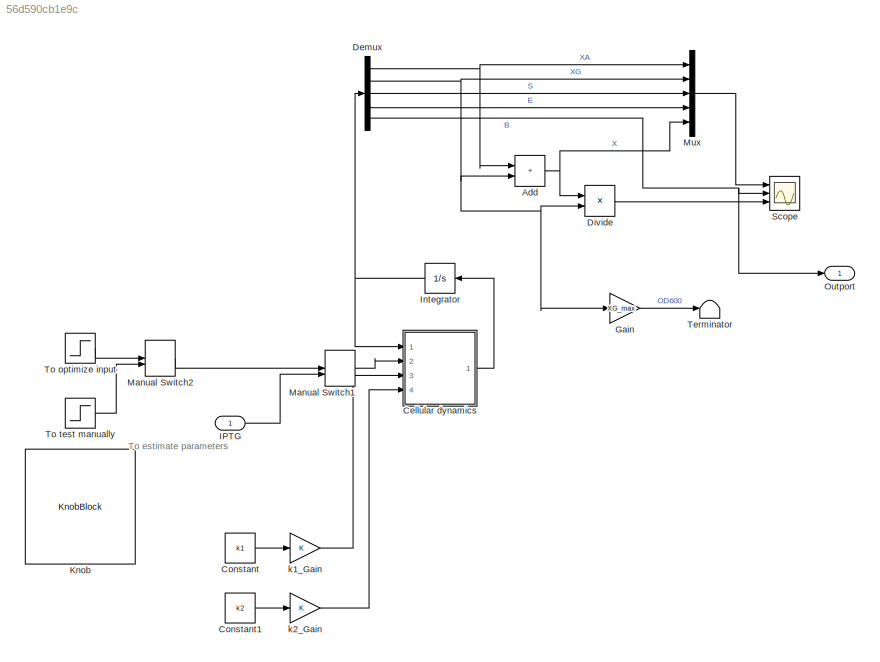
MODEL slx_56d590cb1e9c
KIND model
CONFIG AbsTol = auto
CONFIG EnableMultiTasking = off
CONFIG FixedStep = auto
CONFIG MaxStep = auto
CONFIG MinStep = auto
CONFIG RelTol = 1e-3
CONFIG SampleTimeConstraint = Unconstrained
CONFIG SolverName = VariableStepAuto
CONFIG StartTime = 0.0
CONFIG StopTime = 69
WORKSPACE source: mxarray member
WORKSPACE KE = 0.008112779366
WORKSPACE XA0 = 0
WORKSPACE XG0 = 0.02
WORKSPACE XG_max = 5.46511903061
WORKSPACE aE = 0.150776877402
WORKSPACE k1 = 0.477209468937
WORKSPACE k2 = 0.908904061287
WORKSPACE k3 = 1.2417823041
WORKSPACE n0 = 2.86068812818
WORKSPACE rleak = 0.277729865506
WORKSPACE stepTime = 9.3050645559
BLOCK [Sum] Add
  IconShape = rectangular
  Ports = [2, 1]
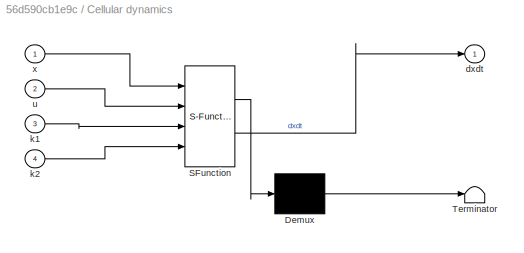
BLOCK [SubSystem] Cellular dynamics
  ErrorFcn = Stateflow.Translate.translate
  PermitHierarchicalResolution = ExplicitOnly
  Ports = [4, 1]
  RequestExecContextInheritance = off
  SFBlockType = MATLAB Function
  TreatAsAtomicUnit = on
BLOCK [Demux] Cellular dynamics/ Demux 
  Outputs = 1
  Ports = [1, 1]
BLOCK [S-Function] Cellular dynamics/ SFunction 
  EnableBusSupport = on
  FunctionName = sf_sfun
  Parameters = KE,aE,k3,rleak
  PortCounts = [4 2]
  Ports = [4, 2]
  SFcnIsStateOwnerBlock = off
  SFunctionDeploymentMode = off
  Tag = Stateflow S-Function 2
BLOCK [Terminator] Cellular dynamics/ Terminator 
BLOCK [Outport] Cellular dynamics/dxdt
BLOCK [Inport] Cellular dynamics/k1
  Port = 3
BLOCK [Inport] Cellular dynamics/k2
  Port = 4
BLOCK [Inport] Cellular dynamics/u
  Port = 2
BLOCK [Inport] Cellular dynamics/x
BLOCK [Constant] Constant
  Value = k1
BLOCK [Constant] Constant1
  Value = k2
BLOCK [Demux] Demux
  Outputs = 5
  Ports = [1, 5]
BLOCK [Product] Divide
  Inputs = */
  Ports = [2, 1]
BLOCK [Gain] Gain
  Gain = XG_max
BLOCK [Inport] IPTG
BLOCK [Integrator] Integrator
  InitialCondition = [n0*XG0; XG0; 1-n0*XG0-XG0; 0; 0]
  Ports = [1, 1]
BLOCK [KnobBlock] Knob
  ScaleMax = 15
BLOCK [ManualSwitch] Manual Switch1
BLOCK [ManualSwitch] Manual Switch2
BLOCK [Mux] Mux
  DisplayOption = bar
  Inputs = 5
  Ports = [5, 1]
BLOCK [Outport] Outport
BLOCK [Scope] Scope
  Floating = off
  NumInputPorts = 3
  Ports = [3]
  ScopeSpecificationString = Simulink.scopes.TimeScopeBlockCfg('CurrentConfiguration', extmgr.ConfigurationSet(extmgr.Configuration('Core','General UI',true),extmgr.Configuration('Core','Source UI',true),extmgr.Configuration('Sources','WiredSimulink',true),extmgr.Configuration('Visuals','Time Domain',true,'TimeAxisLabels','All','SerializedDisplays',{struct('MinYLimReal','0','MaxYLimReal','1','YLabelReal','','MinYLimMag','0.00...<+2664ch>
BLOCK [Terminator] Terminator
BLOCK [Step] To optimize input
  SampleTime = 0
  Time = stepTime
BLOCK [Step] To test manually
  SampleTime = 0
  Time = 9
BLOCK [Gain] k1_Gain
BLOCK [Gain] k2_Gain
ANNOTATION (root): To estimate parameters
NET Add:1 -> Divide:1, Mux:5
LINE Cellular dynamics:1 -> Integrator:1
LINE Constant1:1 -> k2_Gain:1
LINE Constant:1 -> k1_Gain:1
NET Demux:1 -> Add:1, Mux:1
NET Demux:2 -> Add:2, Divide:2, Gain:1, Mux:2
LINE Demux:3 -> Mux:3
LINE Demux:4 -> Mux:4
NET Demux:5 -> Outport:1, Scope:2
LINE Divide:1 -> Scope:3
LINE Gain:1 -> Terminator:1
LINE IPTG:1 -> Manual Switch1:2
NET Integrator:1 -> Cellular dynamics:1, Demux:1
LINE Manual Switch1:1 -> Cellular dynamics:2
LINE Manual Switch2:1 -> Manual Switch1:1
LINE Mux:1 -> Scope:1
LINE To optimize input:1 -> Manual Switch2:1
LINE To test manually:1 -> Manual Switch2:2
LINE k1_Gain:1 -> Cellular dynamics:3
LINE k2_Gain:1 -> Cellular dynamics:4
note: NET lines group one-source signal fan-out (src -> all destinations, sorted); 1:1 wires keep LINE
CHART Cellular dynamics states=1 transitions=1
  STATE_LABEL 'eML_blk_kernel()'
  STATE_LABEL 'SCRIPT:\nfunction dxdt = StateFcn(x,u,k3, rleak, aE, KE, k1, k2)\n%% Parameters\n% k1 = 0.5;\n% k2 = 1;\n% k3 = 2;\n% rleak = 0.3;\n% aE = 0.3;\n% KE = 0.2;\n\n%% Input variables and feed concentration\n\n%% State variables\nXA = x(1);\nXG = x(2);\nS = x(3);\nE = x(4);\n\n%% reaction rates\nv1 = k1*S*(XA + XG + E)*(1 - (1 - rleak)*u); % substrate uptake\nv2 = k2*XA*(XG + E);       % biomass formation (growth)\nv3 = k3...<+204ch>'
CHART  states=0 transitions=0
